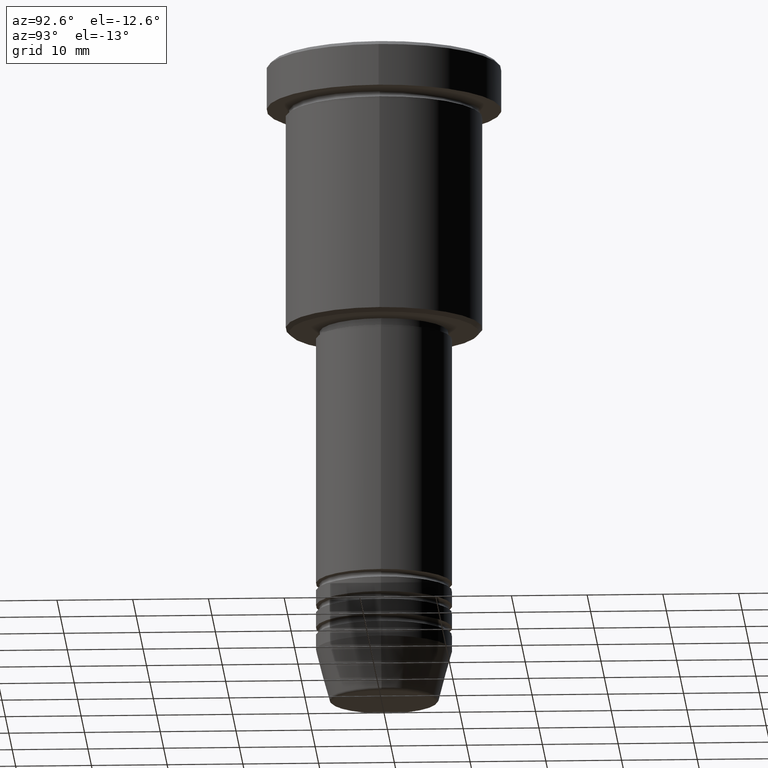
[diagram: clean part render]
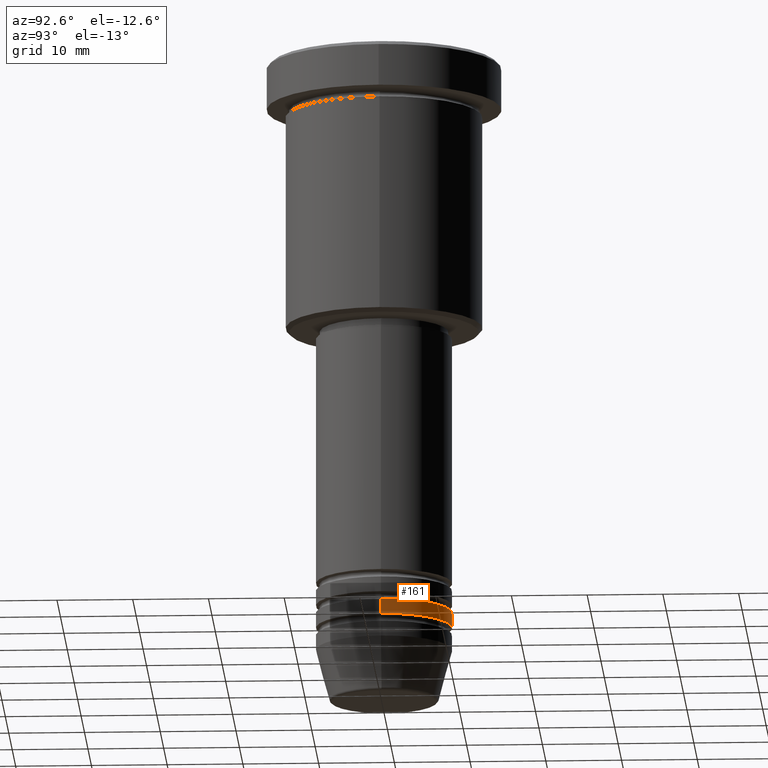
[diagram: same view with one face highlighted and labeled with its STEP entity id]
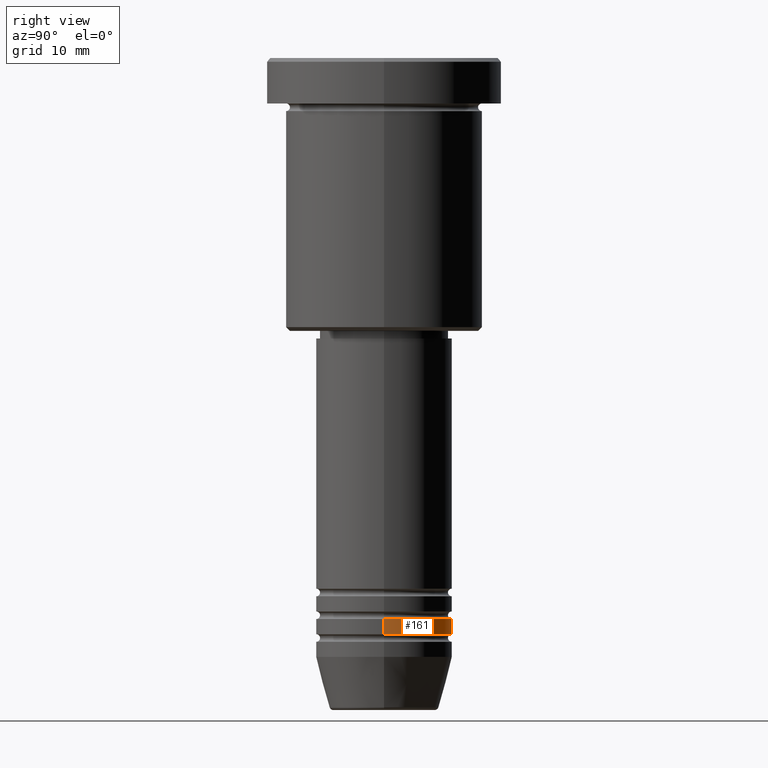
[diagram: same view with one face highlighted and labeled with its STEP entity id]
A machine part, auxiliary view. The second image highlights one B-rep face of the part: STEP entity #161.
A second angle (right view) of the same face is appended — the face is thin or edge-on in the first view.
In plain terms, the highlighted cylindrical surface (partial cylindrical patch) has radius 9 mm, axis along (-0, -0, 1).
Its self-contained STEP definition (entity closure, byte-faithful):
#21 = CARTESIAN_POINT ( 'NONE',  ( 9.000000000000000000, 0.000000000000000000, -75.99999999999998579 ) ) ;
#49 = LINE ( 'NONE', #426, #692 ) ;
#57 = DIRECTION ( 'NONE',  ( 1.000000000000000000, 0.000000000000000000, 0.000000000000000000 ) ) ;
#75 = CYLINDRICAL_SURFACE ( 'NONE', #1109, 9.000000000000000000 ) ;
#77 = VECTOR ( 'NONE', #523, 1000.000000000000000 ) ;
#144 = CARTESIAN_POINT ( 'NONE',  ( -9.000000000000000000, 1.102182119232617714E-15, -75.99999999999998579 ) ) ;
#156 = CARTESIAN_POINT ( 'NONE',  ( -9.000000000000000000, 1.102182119232617714E-15, 0.000000000000000000 ) ) ;
#161 = ADVANCED_FACE ( 'NONE', ( #1150 ), #75, .T. ) ;
#174 = DIRECTION ( 'NONE',  ( 1.000000000000000000, 0.000000000000000000, 0.000000000000000000 ) ) ;
#192 = VERTEX_POINT ( 'NONE', #699 ) ;
#215 = EDGE_CURVE ( 'NONE', #440, #503, #713, .T. ) ;
#261 = DIRECTION ( 'NONE',  ( 1.000000000000000000, 0.000000000000000000, 0.000000000000000000 ) ) ;
#312 = ORIENTED_EDGE ( 'NONE', *, *, #754, .F. ) ;
#370 = DIRECTION ( 'NONE',  ( -0.000000000000000000, -0.000000000000000000, 1.000000000000000000 ) ) ;
#426 = CARTESIAN_POINT ( 'NONE',  ( 9.000000000000000000, 0.000000000000000000, 0.000000000000000000 ) ) ;
#440 = VERTEX_POINT ( 'NONE', #144 ) ;
#456 = ORIENTED_EDGE ( 'NONE', *, *, #215, .T. ) ;
#457 = CIRCLE ( 'NONE', #823, 9.000000000000000000 ) ;
#503 = VERTEX_POINT ( 'NONE', #1006 ) ;
#520 = EDGE_CURVE ( 'NONE', #869, #440, #780, .T. ) ;
#523 = DIRECTION ( 'NONE',  ( -0.000000000000000000, -0.000000000000000000, 1.000000000000000000 ) ) ;
#570 = ORIENTED_EDGE ( 'NONE', *, *, #520, .T. ) ;
#608 = EDGE_CURVE ( 'NONE', #192, #503, #457, .T. ) ;
#636 = CARTESIAN_POINT ( 'NONE',  ( 0.000000000000000000, 0.000000000000000000, 0.000000000000000000 ) ) ;
#687 = AXIS2_PLACEMENT_3D ( 'NONE', #1181, #370, #261 ) ;
#692 = VECTOR ( 'NONE', #1141, 1000.000000000000000 ) ;
#699 = CARTESIAN_POINT ( 'NONE',  ( 9.000000000000000000, 0.000000000000000000, -73.99999999999998579 ) ) ;
#713 = LINE ( 'NONE', #156, #77 ) ;
#754 = EDGE_CURVE ( 'NONE', #869, #192, #49, .T. ) ;
#780 = CIRCLE ( 'NONE', #687, 9.000000000000000000 ) ;
#823 = AXIS2_PLACEMENT_3D ( 'NONE', #988, #1095, #57 ) ;
#835 = ORIENTED_EDGE ( 'NONE', *, *, #608, .F. ) ;
#869 = VERTEX_POINT ( 'NONE', #21 ) ;
#928 = EDGE_LOOP ( 'NONE', ( #570, #456, #835, #312 ) ) ;
#988 = CARTESIAN_POINT ( 'NONE',  ( 0.000000000000000000, 0.000000000000000000, -73.99999999999998579 ) ) ;
#1000 = DIRECTION ( 'NONE',  ( -0.000000000000000000, -0.000000000000000000, 1.000000000000000000 ) ) ;
#1006 = CARTESIAN_POINT ( 'NONE',  ( -9.000000000000000000, 1.102182119232617714E-15, -73.99999999999998579 ) ) ;
#1095 = DIRECTION ( 'NONE',  ( -0.000000000000000000, -0.000000000000000000, 1.000000000000000000 ) ) ;
#1109 = AXIS2_PLACEMENT_3D ( 'NONE', #636, #1000, #174 ) ;
#1141 = DIRECTION ( 'NONE',  ( -0.000000000000000000, -0.000000000000000000, 1.000000000000000000 ) ) ;
#1150 = FACE_OUTER_BOUND ( 'NONE', #928, .T. ) ;
#1181 = CARTESIAN_POINT ( 'NONE',  ( 0.000000000000000000, 0.000000000000000000, -75.99999999999998579 ) ) ;